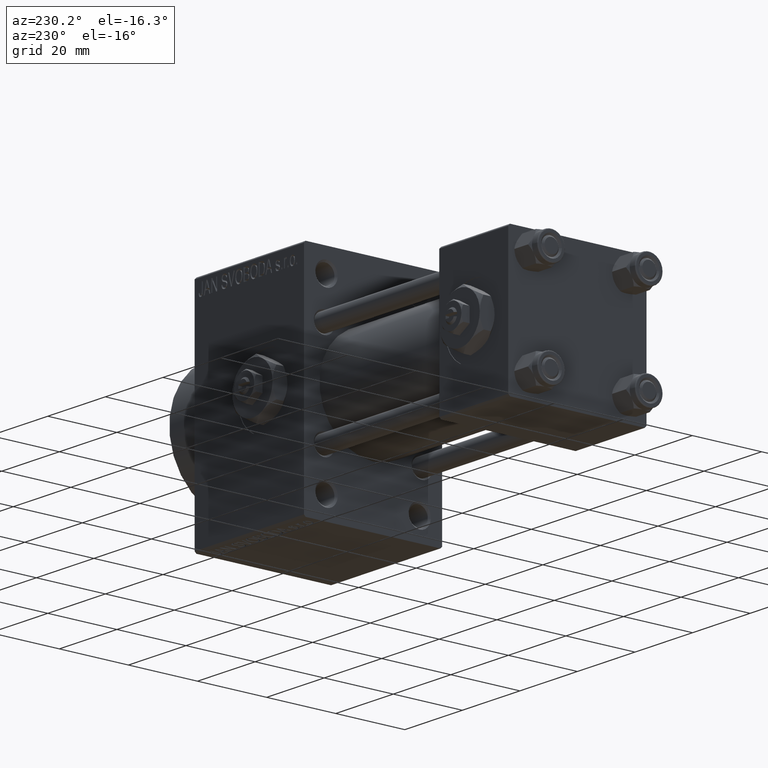
[diagram: clean part render]
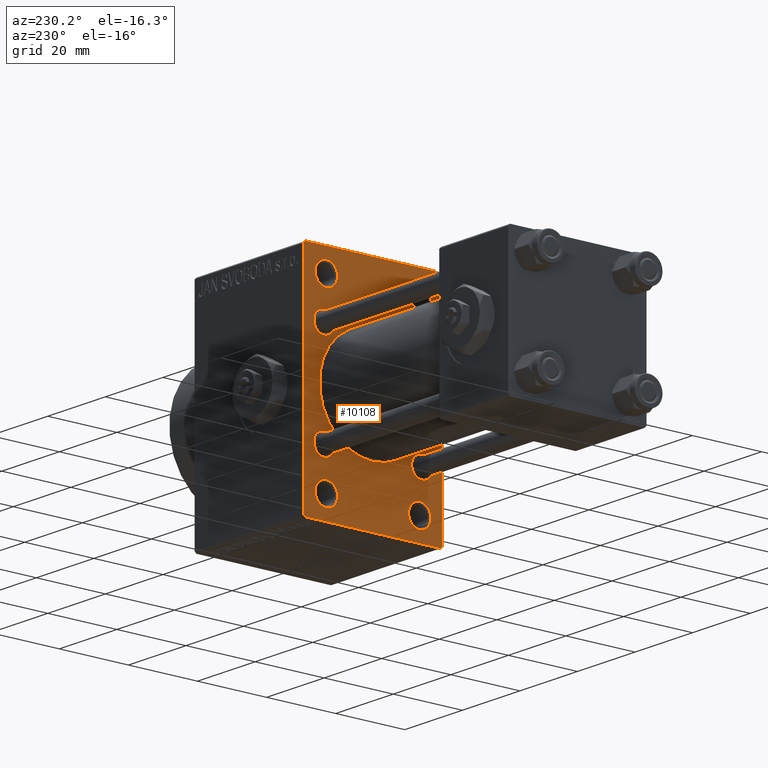
[diagram: same view with one face highlighted and labeled with its STEP entity id]
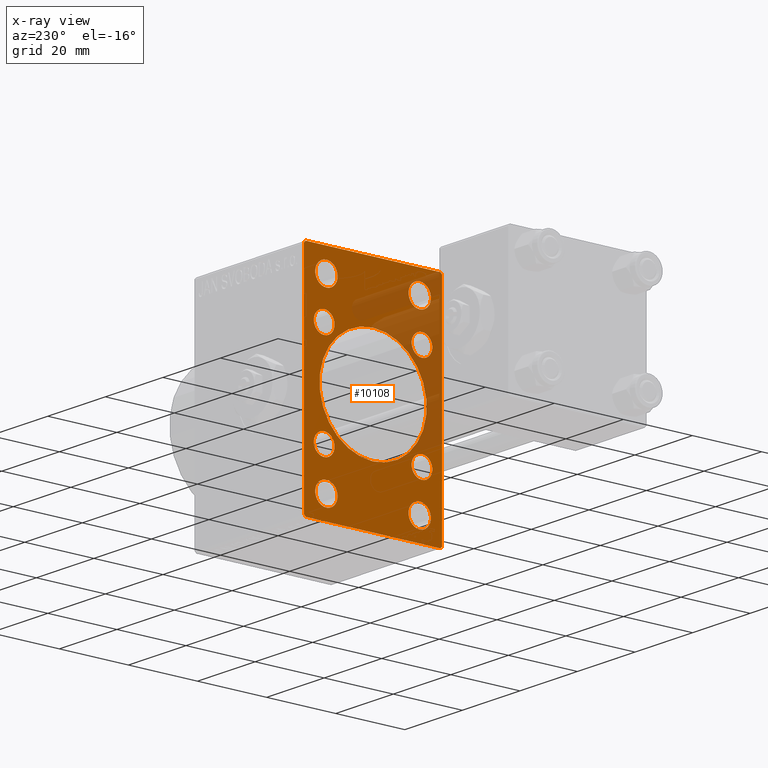
[diagram: x-ray of the same camera — body ghosted, the highlighted face saturated]
A machine part, auxiliary view. The second image highlights one B-rep face of the part: STEP entity #10108.
The next image is the same camera in x-ray: the body ghosted, the highlighted face saturated — about 24% of this face is hidden behind the body in this view.
In plain terms, the highlighted planar face has unit normal (-1, 0, 0).
Its self-contained STEP definition (entity closure, byte-faithful):
#213 = VECTOR ( 'NONE', #33286, 1000.000000000000000 ) ;
#264 = EDGE_LOOP ( 'NONE', ( #1413, #10323 ) ) ;
#319 = CARTESIAN_POINT ( 'NONE',  ( 71.00000000000001421, 25.74999999999999645, 25.74999999999999645 ) ) ;
#646 = CARTESIAN_POINT ( 'NONE',  ( 71.00000000000001421, 19.49999999999998579, 32.00000000000000000 ) ) ;
#775 = AXIS2_PLACEMENT_3D ( 'NONE', #43013, #36020, #2044 ) ;
#1056 = DIRECTION ( 'NONE',  ( 0.000000000000000000, 0.000000000000000000, 1.000000000000000000 ) ) ;
#1413 = ORIENTED_EDGE ( 'NONE', *, *, #22049, .T. ) ;
#1541 = DIRECTION ( 'NONE',  ( 1.000000000000000000, 0.000000000000000000, 0.000000000000000000 ) ) ;
#1667 = VERTEX_POINT ( 'NONE', #21578 ) ;
#1969 = VECTOR ( 'NONE', #15844, 1000.000000000000000 ) ;
#2044 = DIRECTION ( 'NONE',  ( 0.000000000000000000, 0.000000000000000000, -1.000000000000000000 ) ) ;
#2142 = ORIENTED_EDGE ( 'NONE', *, *, #46999, .T. ) ;
#2221 = CIRCLE ( 'NONE', #13291, 3.250000000000030642 ) ;
#2245 = EDGE_CURVE ( 'NONE', #27012, #39835, #41258, .T. ) ;
#2592 = ORIENTED_EDGE ( 'NONE', *, *, #37859, .T. ) ;
#2624 = DIRECTION ( 'NONE',  ( 0.000000000000000000, -1.000000000000000000, 0.000000000000000000 ) ) ;
#2639 = EDGE_CURVE ( 'NONE', #36270, #10577, #10463, .T. ) ;
#2642 = DIRECTION ( 'NONE',  ( -1.000000000000000000, 0.000000000000000000, -0.000000000000000000 ) ) ;
#2645 = CARTESIAN_POINT ( 'NONE',  ( 71.00000000000001421, -2.602085213965210642E-15, 0.000000000000000000 ) ) ;
#2832 = VERTEX_POINT ( 'NONE', #19389 ) ;
#3010 = ORIENTED_EDGE ( 'NONE', *, *, #47370, .T. ) ;
#3135 = AXIS2_PLACEMENT_3D ( 'NONE', #35899, #21274, #14077 ) ;
#4313 = AXIS2_PLACEMENT_3D ( 'NONE', #6987, #48683, #11188 ) ;
#4517 = CARTESIAN_POINT ( 'NONE',  ( 71.00000000000001421, -2.602085213965210642E-15, 15.50000000000000000 ) ) ;
#4534 = CARTESIAN_POINT ( 'NONE',  ( 71.00000000000001421, 14.15000000000000036, -14.15000000000000036 ) ) ;
#4762 = CIRCLE ( 'NONE', #6333, 3.000000000000004441 ) ;
#4802 = CIRCLE ( 'NONE', #11132, 3.000000000000004441 ) ;
#5623 = EDGE_LOOP ( 'NONE', ( #7624, #18071, #38142, #15691, #46538, #46325, #26898, #43493 ) ) ;
#5642 = DIRECTION ( 'NONE',  ( 0.000000000000000000, 0.000000000000000000, 1.000000000000000000 ) ) ;
#5673 = EDGE_LOOP ( 'NONE', ( #34397, #15314 ) ) ;
#5873 = AXIS2_PLACEMENT_3D ( 'NONE', #27091, #19664, #1056 ) ;
#5986 = CARTESIAN_POINT ( 'NONE',  ( 71.00000000000001421, 14.15000000000000036, 14.15000000000000036 ) ) ;
#5999 = VERTEX_POINT ( 'NONE', #37865 ) ;
#6333 = AXIS2_PLACEMENT_3D ( 'NONE', #28166, #46569, #12306 ) ;
#6372 = FACE_BOUND ( 'NONE', #6646, .T. ) ;
#6646 = EDGE_LOOP ( 'NONE', ( #39428, #40490 ) ) ;
#6987 = CARTESIAN_POINT ( 'NONE',  ( 71.00000000000001421, -13.50000000000000178, 25.50000000000000355 ) ) ;
#7006 = VERTEX_POINT ( 'NONE', #26747 ) ;
#7332 = EDGE_CURVE ( 'NONE', #39835, #41530, #10217, .T. ) ;
#7333 = DIRECTION ( 'NONE',  ( 1.000000000000000000, 0.000000000000000000, 0.000000000000000000 ) ) ;
#7512 = DIRECTION ( 'NONE',  ( 0.000000000000000000, -1.000000000000000000, -1.734723475976807094E-16 ) ) ;
#7624 = ORIENTED_EDGE ( 'NONE', *, *, #28213, .T. ) ;
#7694 = AXIS2_PLACEMENT_3D ( 'NONE', #14532, #7333, #14781 ) ;
#7750 = DIRECTION ( 'NONE',  ( 0.000000000000000000, 0.7071067811865474617, -0.7071067811865474617 ) ) ;
#7826 = DIRECTION ( 'NONE',  ( 1.000000000000000000, 0.000000000000000000, 0.000000000000000000 ) ) ;
#7868 = AXIS2_PLACEMENT_3D ( 'NONE', #20475, #20714, #24683 ) ;
#7993 = EDGE_CURVE ( 'NONE', #34626, #1667, #21518, .T. ) ;
#8725 = DIRECTION ( 'NONE',  ( 0.000000000000000000, 0.000000000000000000, 1.000000000000000000 ) ) ;
#9097 = CARTESIAN_POINT ( 'NONE',  ( 71.00000000000001421, 20.00000000000000000, -31.49999999999998579 ) ) ;
#9144 = VECTOR ( 'NONE', #2624, 1000.000000000000000 ) ;
#9396 = CARTESIAN_POINT ( 'NONE',  ( 71.00000000000001421, 14.15000000000000036, 14.15000000000000036 ) ) ;
#9551 = EDGE_CURVE ( 'NONE', #16917, #20306, #48480, .T. ) ;
#9827 = ORIENTED_EDGE ( 'NONE', *, *, #33535, .T. ) ;
#9907 = CIRCLE ( 'NONE', #48751, 3.250000000000030642 ) ;
#10108 = ADVANCED_FACE ( 'NONE', ( #47820, #29420, #13809, #44113, #18271, #22000, #25226, #40391, #6372, #21499 ), #10565, .T. ) ;
#10185 = VERTEX_POINT ( 'NONE', #34365 ) ;
#10217 = LINE ( 'NONE', #36766, #37498 ) ;
#10323 = ORIENTED_EDGE ( 'NONE', *, *, #48272, .T. ) ;
#10453 = CIRCLE ( 'NONE', #12851, 3.250000000000030642 ) ;
#10463 = CIRCLE ( 'NONE', #35800, 3.250000000000030642 ) ;
#10565 = PLANE ( 'NONE',  #27237 ) ;
#10577 = VERTEX_POINT ( 'NONE', #14670 ) ;
#10721 = EDGE_CURVE ( 'NONE', #34626, #20306, #24798, .T. ) ;
#11132 = AXIS2_PLACEMENT_3D ( 'NONE', #14463, #36308, #36548 ) ;
#11188 = DIRECTION ( 'NONE',  ( 0.000000000000000000, 0.000000000000000000, 1.000000000000000000 ) ) ;
#11195 = CARTESIAN_POINT ( 'NONE',  ( 71.00000000000001421, 20.00000000000000000, 32.00000000000000000 ) ) ;
#11350 = CARTESIAN_POINT ( 'NONE',  ( 71.00000000000001421, -19.49999999999998579, 31.99999999999999289 ) ) ;
#11417 = VECTOR ( 'NONE', #7512, 1000.000000000000000 ) ;
#11471 = LINE ( 'NONE', #319, #30076 ) ;
#12046 = CIRCLE ( 'NONE', #39022, 3.000000000000004441 ) ;
#12061 = ORIENTED_EDGE ( 'NONE', *, *, #41133, .T. ) ;
#12306 = DIRECTION ( 'NONE',  ( 0.000000000000000000, 0.000000000000000000, 1.000000000000000000 ) ) ;
#12843 = CARTESIAN_POINT ( 'NONE',  ( 71.00000000000001421, -25.75000000000012790, -25.74999999999977263 ) ) ;
#12851 = AXIS2_PLACEMENT_3D ( 'NONE', #29667, #48312, #44355 ) ;
#13291 = AXIS2_PLACEMENT_3D ( 'NONE', #26152, #29380, #48511 ) ;
#13809 = FACE_BOUND ( 'NONE', #34161, .T. ) ;
#13918 = DIRECTION ( 'NONE',  ( 0.000000000000000000, 0.000000000000000000, 1.000000000000000000 ) ) ;
#14077 = DIRECTION ( 'NONE',  ( 0.000000000000000000, 0.000000000000000000, 1.000000000000000000 ) ) ;
#14463 = CARTESIAN_POINT ( 'NONE',  ( 71.00000000000001421, 14.15000000000000036, -14.15000000000000036 ) ) ;
#14532 = CARTESIAN_POINT ( 'NONE',  ( 71.00000000000001421, -14.15000000000000036, 14.15000000000000036 ) ) ;
#14670 = CARTESIAN_POINT ( 'NONE',  ( 71.00000000000001421, -13.50000000000000533, -28.75000000000002487 ) ) ;
#14781 = DIRECTION ( 'NONE',  ( 0.000000000000000000, 0.000000000000000000, 1.000000000000000000 ) ) ;
#15314 = ORIENTED_EDGE ( 'NONE', *, *, #43345, .T. ) ;
#15691 = ORIENTED_EDGE ( 'NONE', *, *, #10721, .T. ) ;
#15844 = DIRECTION ( 'NONE',  ( 0.000000000000000000, -0.7071067811865426878, 0.7071067811865524577 ) ) ;
#15948 = EDGE_LOOP ( 'NONE', ( #3010, #22036 ) ) ;
#15969 = AXIS2_PLACEMENT_3D ( 'NONE', #4534, #1541, #8725 ) ;
#16021 = CARTESIAN_POINT ( 'NONE',  ( 71.00000000000001421, -13.50000000000000533, -22.24999999999996447 ) ) ;
#16446 = CARTESIAN_POINT ( 'NONE',  ( 71.00000000000001421, 19.49999999999998579, -32.00000000000000000 ) ) ;
#16917 = VERTEX_POINT ( 'NONE', #646 ) ;
#17792 = CARTESIAN_POINT ( 'NONE',  ( 71.00000000000001421, -14.15000000000000036, -14.15000000000000036 ) ) ;
#18024 = CARTESIAN_POINT ( 'NONE',  ( 71.00000000000001421, -13.50000000000000533, -25.49999999999999645 ) ) ;
#18071 = ORIENTED_EDGE ( 'NONE', *, *, #25581, .T. ) ;
#18271 = FACE_BOUND ( 'NONE', #15948, .T. ) ;
#18443 = CARTESIAN_POINT ( 'NONE',  ( 71.00000000000001421, 20.00000000000000000, 32.00000000000000000 ) ) ;
#18674 = CARTESIAN_POINT ( 'NONE',  ( 71.00000000000001421, 20.00000000000000000, 31.49999999999998579 ) ) ;
#18869 = DIRECTION ( 'NONE',  ( 0.000000000000000000, 0.000000000000000000, 1.000000000000000000 ) ) ;
#18915 = VERTEX_POINT ( 'NONE', #48879 ) ;
#19389 = CARTESIAN_POINT ( 'NONE',  ( 71.00000000000001421, -19.49999999999998579, -32.00000000000000000 ) ) ;
#19664 = DIRECTION ( 'NONE',  ( 1.000000000000000000, 0.000000000000000000, 0.000000000000000000 ) ) ;
#20192 = CARTESIAN_POINT ( 'NONE',  ( 71.00000000000001421, 14.15000000000000036, 17.15000000000000568 ) ) ;
#20306 = VERTEX_POINT ( 'NONE', #11350 ) ;
#20367 = ORIENTED_EDGE ( 'NONE', *, *, #2639, .T. ) ;
#20475 = CARTESIAN_POINT ( 'NONE',  ( 71.00000000000001421, 13.49999999999999822, -25.50000000000000000 ) ) ;
#20520 = CIRCLE ( 'NONE', #41160, 3.000000000000004441 ) ;
#20663 = EDGE_CURVE ( 'NONE', #5999, #22336, #45727, .T. ) ;
#20714 = DIRECTION ( 'NONE',  ( 1.000000000000000000, 0.000000000000000000, 0.000000000000000000 ) ) ;
#20777 = DIRECTION ( 'NONE',  ( 1.000000000000000000, 0.000000000000000000, 0.000000000000000000 ) ) ;
#21274 = DIRECTION ( 'NONE',  ( 1.000000000000000000, 0.000000000000000000, 0.000000000000000000 ) ) ;
#21325 = EDGE_CURVE ( 'NONE', #45175, #36801, #25023, .T. ) ;
#21499 = FACE_OUTER_BOUND ( 'NONE', #5623, .T. ) ;
#21518 = LINE ( 'NONE', #40411, #42252 ) ;
#21578 = CARTESIAN_POINT ( 'NONE',  ( 71.00000000000001421, -20.00000000000000000, -31.49999999999997868 ) ) ;
#22000 = FACE_BOUND ( 'NONE', #31396, .T. ) ;
#22036 = ORIENTED_EDGE ( 'NONE', *, *, #20663, .T. ) ;
#22049 = EDGE_CURVE ( 'NONE', #18915, #10185, #47106, .T. ) ;
#22336 = VERTEX_POINT ( 'NONE', #25059 ) ;
#22384 = CARTESIAN_POINT ( 'NONE',  ( 71.00000000000001421, 13.49999999999999822, 22.24999999999997513 ) ) ;
#22425 = DIRECTION ( 'NONE',  ( 0.000000000000000000, 0.000000000000000000, 1.000000000000000000 ) ) ;
#22638 = EDGE_CURVE ( 'NONE', #25269, #22983, #9907, .T. ) ;
#22748 = VERTEX_POINT ( 'NONE', #25266 ) ;
#22983 = VERTEX_POINT ( 'NONE', #31160 ) ;
#23140 = ORIENTED_EDGE ( 'NONE', *, *, #40805, .T. ) ;
#23433 = VERTEX_POINT ( 'NONE', #20192 ) ;
#24409 = CARTESIAN_POINT ( 'NONE',  ( 71.00000000000001421, -7.038826752868131828E-16, -15.50000000000000000 ) ) ;
#24683 = DIRECTION ( 'NONE',  ( 0.000000000000000000, 0.000000000000000000, 1.000000000000000000 ) ) ;
#24760 = VERTEX_POINT ( 'NONE', #32475 ) ;
#24798 = LINE ( 'NONE', #47393, #27269 ) ;
#25023 = CIRCLE ( 'NONE', #48354, 15.50000000000000000 ) ;
#25059 = CARTESIAN_POINT ( 'NONE',  ( 71.00000000000001421, -14.15000000000000036, 17.15000000000000568 ) ) ;
#25226 = FACE_BOUND ( 'NONE', #5673, .T. ) ;
#25266 = CARTESIAN_POINT ( 'NONE',  ( 71.00000000000001421, 14.15000000000000036, 11.14999999999999680 ) ) ;
#25269 = VERTEX_POINT ( 'NONE', #22384 ) ;
#25581 = EDGE_CURVE ( 'NONE', #2832, #1667, #28219, .T. ) ;
#26055 = DIRECTION ( 'NONE',  ( 1.000000000000000000, 0.000000000000000000, 0.000000000000000000 ) ) ;
#26152 = CARTESIAN_POINT ( 'NONE',  ( 71.00000000000001421, -13.50000000000000533, -25.49999999999999645 ) ) ;
#26488 = ORIENTED_EDGE ( 'NONE', *, *, #22638, .T. ) ;
#26747 = CARTESIAN_POINT ( 'NONE',  ( 71.00000000000001421, -14.15000000000000036, -17.15000000000000568 ) ) ;
#26787 = EDGE_LOOP ( 'NONE', ( #40398, #23140 ) ) ;
#26898 = ORIENTED_EDGE ( 'NONE', *, *, #2245, .T. ) ;
#27012 = VERTEX_POINT ( 'NONE', #18674 ) ;
#27091 = CARTESIAN_POINT ( 'NONE',  ( 71.00000000000001421, -13.50000000000000178, 25.50000000000000355 ) ) ;
#27237 = AXIS2_PLACEMENT_3D ( 'NONE', #36630, #2642, #48064 ) ;
#27269 = VECTOR ( 'NONE', #31978, 1000.000000000000114 ) ;
#28166 = CARTESIAN_POINT ( 'NONE',  ( 71.00000000000001421, -14.15000000000000036, -14.15000000000000036 ) ) ;
#28213 = EDGE_CURVE ( 'NONE', #41530, #2832, #36615, .T. ) ;
#28219 = LINE ( 'NONE', #12843, #1969 ) ;
#28992 = DIRECTION ( 'NONE',  ( 1.000000000000000000, 0.000000000000000000, 0.000000000000000000 ) ) ;
#29272 = VERTEX_POINT ( 'NONE', #39639 ) ;
#29380 = DIRECTION ( 'NONE',  ( 1.000000000000000000, 0.000000000000000000, 0.000000000000000000 ) ) ;
#29420 = FACE_BOUND ( 'NONE', #49080, .T. ) ;
#29667 = CARTESIAN_POINT ( 'NONE',  ( 71.00000000000001421, 13.49999999999999822, -25.50000000000000000 ) ) ;
#29774 = CARTESIAN_POINT ( 'NONE',  ( 71.00000000000001421, 13.49999999999999822, 25.50000000000000355 ) ) ;
#30076 = VECTOR ( 'NONE', #7750, 1000.000000000000114 ) ;
#31073 = CARTESIAN_POINT ( 'NONE',  ( 71.00000000000001421, 14.15000000000000036, -11.14999999999999680 ) ) ;
#31160 = CARTESIAN_POINT ( 'NONE',  ( 71.00000000000001421, 13.49999999999999822, 28.75000000000003553 ) ) ;
#31396 = EDGE_LOOP ( 'NONE', ( #2592, #42371 ) ) ;
#31978 = DIRECTION ( 'NONE',  ( -0.000000000000000000, 0.7071067811865474617, 0.7071067811865474617 ) ) ;
#32475 = CARTESIAN_POINT ( 'NONE',  ( 71.00000000000001421, 13.49999999999999822, -22.24999999999996803 ) ) ;
#32786 = DIRECTION ( 'NONE',  ( -0.000000000000000000, -0.7071067811865474617, -0.7071067811865474617 ) ) ;
#33286 = DIRECTION ( 'NONE',  ( 0.000000000000000000, 0.000000000000000000, -1.000000000000000000 ) ) ;
#33327 = DIRECTION ( 'NONE',  ( 1.000000000000000000, 0.000000000000000000, 0.000000000000000000 ) ) ;
#33535 = EDGE_CURVE ( 'NONE', #10577, #36270, #2221, .T. ) ;
#34161 = EDGE_LOOP ( 'NONE', ( #2142, #12061 ) ) ;
#34365 = CARTESIAN_POINT ( 'NONE',  ( 71.00000000000001421, -13.50000000000000178, 22.24999999999997158 ) ) ;
#34397 = ORIENTED_EDGE ( 'NONE', *, *, #46257, .T. ) ;
#34626 = VERTEX_POINT ( 'NONE', #40591 ) ;
#35800 = AXIS2_PLACEMENT_3D ( 'NONE', #18024, #7826, #49041 ) ;
#35899 = CARTESIAN_POINT ( 'NONE',  ( 71.00000000000001421, 13.49999999999999822, 25.50000000000000355 ) ) ;
#36020 = DIRECTION ( 'NONE',  ( 1.000000000000000000, 0.000000000000000000, 0.000000000000000000 ) ) ;
#36156 = VERTEX_POINT ( 'NONE', #41029 ) ;
#36270 = VERTEX_POINT ( 'NONE', #16021 ) ;
#36308 = DIRECTION ( 'NONE',  ( 1.000000000000000000, 0.000000000000000000, 0.000000000000000000 ) ) ;
#36421 = AXIS2_PLACEMENT_3D ( 'NONE', #5986, #40493, #13918 ) ;
#36548 = DIRECTION ( 'NONE',  ( 0.000000000000000000, 0.000000000000000000, 1.000000000000000000 ) ) ;
#36615 = LINE ( 'NONE', #40376, #9144 ) ;
#36630 = CARTESIAN_POINT ( 'NONE',  ( 71.00000000000001421, 0.000000000000000000, 0.000000000000000000 ) ) ;
#36766 = CARTESIAN_POINT ( 'NONE',  ( 71.00000000000001421, 25.74999999999999645, -25.74999999999999645 ) ) ;
#36801 = VERTEX_POINT ( 'NONE', #4517 ) ;
#37498 = VECTOR ( 'NONE', #32786, 1000.000000000000114 ) ;
#37555 = CARTESIAN_POINT ( 'NONE',  ( 71.00000000000001421, -14.15000000000000036, 14.15000000000000036 ) ) ;
#37756 = EDGE_CURVE ( 'NONE', #16917, #27012, #11471, .T. ) ;
#37859 = EDGE_CURVE ( 'NONE', #23433, #22748, #47534, .T. ) ;
#37865 = CARTESIAN_POINT ( 'NONE',  ( 71.00000000000001421, -14.15000000000000036, 11.14999999999999503 ) ) ;
#38142 = ORIENTED_EDGE ( 'NONE', *, *, #7993, .F. ) ;
#38176 = CIRCLE ( 'NONE', #15969, 3.000000000000004441 ) ;
#38403 = EDGE_LOOP ( 'NONE', ( #44793, #26488 ) ) ;
#38817 = CIRCLE ( 'NONE', #44357, 3.000000000000004441 ) ;
#39022 = AXIS2_PLACEMENT_3D ( 'NONE', #37555, #33327, #22425 ) ;
#39025 = CARTESIAN_POINT ( 'NONE',  ( 71.00000000000001421, 13.49999999999999822, -28.75000000000002842 ) ) ;
#39201 = EDGE_CURVE ( 'NONE', #22748, #23433, #20520, .T. ) ;
#39428 = ORIENTED_EDGE ( 'NONE', *, *, #40600, .T. ) ;
#39639 = CARTESIAN_POINT ( 'NONE',  ( 71.00000000000001421, 14.15000000000000036, -17.15000000000000568 ) ) ;
#39835 = VERTEX_POINT ( 'NONE', #9097 ) ;
#40376 = CARTESIAN_POINT ( 'NONE',  ( 71.00000000000001421, 20.00000000000000000, -32.00000000000000000 ) ) ;
#40391 = FACE_BOUND ( 'NONE', #26787, .T. ) ;
#40398 = ORIENTED_EDGE ( 'NONE', *, *, #42292, .T. ) ;
#40411 = CARTESIAN_POINT ( 'NONE',  ( 71.00000000000001421, -20.00000000000000000, 31.99999999999999289 ) ) ;
#40447 = VERTEX_POINT ( 'NONE', #31073 ) ;
#40490 = ORIENTED_EDGE ( 'NONE', *, *, #21325, .T. ) ;
#40493 = DIRECTION ( 'NONE',  ( 1.000000000000000000, 0.000000000000000000, 0.000000000000000000 ) ) ;
#40591 = CARTESIAN_POINT ( 'NONE',  ( 71.00000000000001421, -20.00000000000000000, 31.49999999999997868 ) ) ;
#40600 = EDGE_CURVE ( 'NONE', #36801, #45175, #45161, .T. ) ;
#40629 = DIRECTION ( 'NONE',  ( 0.000000000000000000, 0.000000000000000000, -1.000000000000000000 ) ) ;
#40783 = EDGE_CURVE ( 'NONE', #22983, #25269, #47531, .T. ) ;
#40805 = EDGE_CURVE ( 'NONE', #7006, #36156, #38817, .T. ) ;
#41029 = CARTESIAN_POINT ( 'NONE',  ( 71.00000000000001421, -14.15000000000000036, -11.14999999999999680 ) ) ;
#41133 = EDGE_CURVE ( 'NONE', #48158, #24760, #46708, .T. ) ;
#41160 = AXIS2_PLACEMENT_3D ( 'NONE', #9396, #28992, #43428 ) ;
#41258 = LINE ( 'NONE', #11195, #213 ) ;
#41530 = VERTEX_POINT ( 'NONE', #16446 ) ;
#42252 = VECTOR ( 'NONE', #45094, 1000.000000000000000 ) ;
#42292 = EDGE_CURVE ( 'NONE', #36156, #7006, #4762, .T. ) ;
#42371 = ORIENTED_EDGE ( 'NONE', *, *, #39201, .T. ) ;
#43013 = CARTESIAN_POINT ( 'NONE',  ( 71.00000000000001421, -2.602085213965210642E-15, 0.000000000000000000 ) ) ;
#43345 = EDGE_CURVE ( 'NONE', #29272, #40447, #4802, .T. ) ;
#43428 = DIRECTION ( 'NONE',  ( 0.000000000000000000, 0.000000000000000000, 1.000000000000000000 ) ) ;
#43493 = ORIENTED_EDGE ( 'NONE', *, *, #7332, .T. ) ;
#44113 = FACE_BOUND ( 'NONE', #38403, .T. ) ;
#44116 = DIRECTION ( 'NONE',  ( 1.000000000000000000, 0.000000000000000000, 0.000000000000000000 ) ) ;
#44355 = DIRECTION ( 'NONE',  ( 0.000000000000000000, 0.000000000000000000, 1.000000000000000000 ) ) ;
#44357 = AXIS2_PLACEMENT_3D ( 'NONE', #17792, #20777, #5642 ) ;
#44722 = CIRCLE ( 'NONE', #5873, 3.250000000000030642 ) ;
#44793 = ORIENTED_EDGE ( 'NONE', *, *, #40783, .T. ) ;
#45094 = DIRECTION ( 'NONE',  ( 0.000000000000000000, 0.000000000000000000, -1.000000000000000000 ) ) ;
#45161 = CIRCLE ( 'NONE', #775, 15.50000000000000000 ) ;
#45175 = VERTEX_POINT ( 'NONE', #24409 ) ;
#45727 = CIRCLE ( 'NONE', #7694, 3.000000000000004441 ) ;
#46257 = EDGE_CURVE ( 'NONE', #40447, #29272, #38176, .T. ) ;
#46325 = ORIENTED_EDGE ( 'NONE', *, *, #37756, .T. ) ;
#46538 = ORIENTED_EDGE ( 'NONE', *, *, #9551, .F. ) ;
#46569 = DIRECTION ( 'NONE',  ( 1.000000000000000000, 0.000000000000000000, 0.000000000000000000 ) ) ;
#46708 = CIRCLE ( 'NONE', #7868, 3.250000000000030642 ) ;
#46999 = EDGE_CURVE ( 'NONE', #24760, #48158, #10453, .T. ) ;
#47106 = CIRCLE ( 'NONE', #4313, 3.250000000000030642 ) ;
#47370 = EDGE_CURVE ( 'NONE', #22336, #5999, #12046, .T. ) ;
#47393 = CARTESIAN_POINT ( 'NONE',  ( 71.00000000000001421, -25.74999999999998934, 25.74999999999998934 ) ) ;
#47531 = CIRCLE ( 'NONE', #3135, 3.250000000000030642 ) ;
#47534 = CIRCLE ( 'NONE', #36421, 3.000000000000004441 ) ;
#47820 = FACE_BOUND ( 'NONE', #264, .T. ) ;
#48064 = DIRECTION ( 'NONE',  ( -0.000000000000000000, 0.000000000000000000, 1.000000000000000000 ) ) ;
#48158 = VERTEX_POINT ( 'NONE', #39025 ) ;
#48272 = EDGE_CURVE ( 'NONE', #10185, #18915, #44722, .T. ) ;
#48312 = DIRECTION ( 'NONE',  ( 1.000000000000000000, 0.000000000000000000, 0.000000000000000000 ) ) ;
#48354 = AXIS2_PLACEMENT_3D ( 'NONE', #2645, #44116, #40629 ) ;
#48480 = LINE ( 'NONE', #18443, #11417 ) ;
#48511 = DIRECTION ( 'NONE',  ( 0.000000000000000000, 0.000000000000000000, 1.000000000000000000 ) ) ;
#48683 = DIRECTION ( 'NONE',  ( 1.000000000000000000, 0.000000000000000000, 0.000000000000000000 ) ) ;
#48751 = AXIS2_PLACEMENT_3D ( 'NONE', #29774, #26055, #18869 ) ;
#48879 = CARTESIAN_POINT ( 'NONE',  ( 71.00000000000001421, -13.50000000000000178, 28.75000000000003197 ) ) ;
#49041 = DIRECTION ( 'NONE',  ( 0.000000000000000000, 0.000000000000000000, 1.000000000000000000 ) ) ;
#49080 = EDGE_LOOP ( 'NONE', ( #20367, #9827 ) ) ;